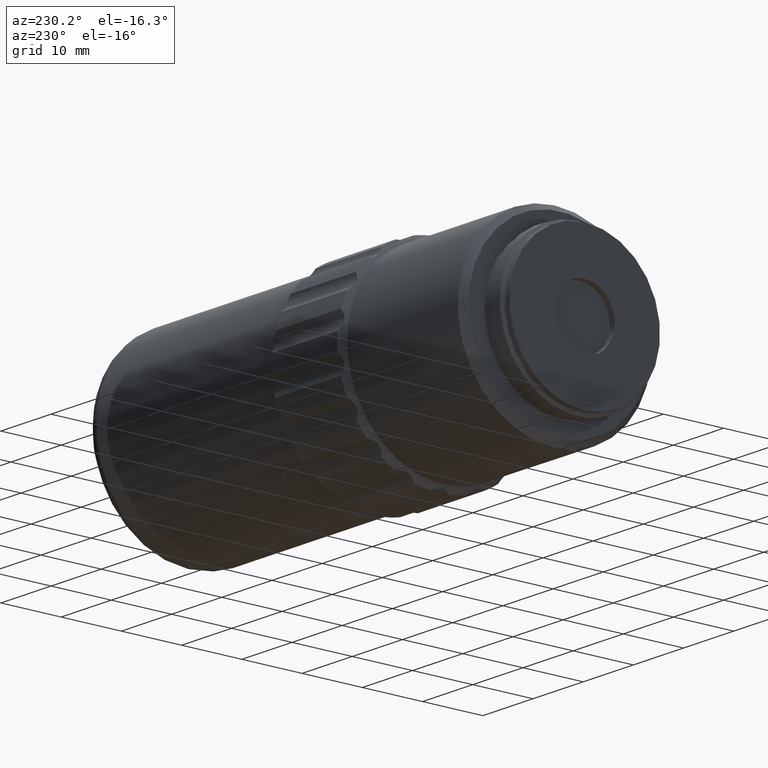
[diagram: clean part render]
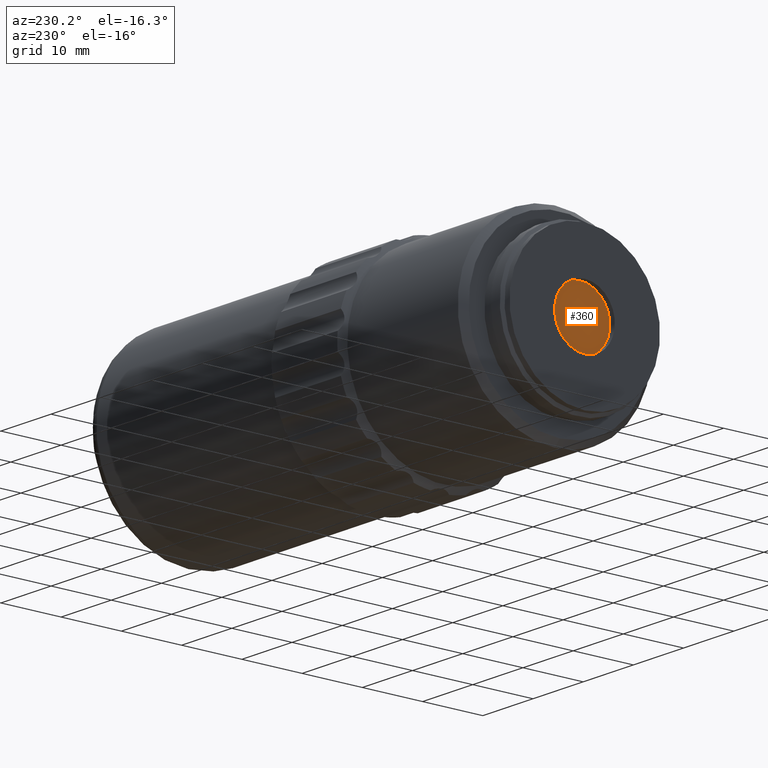
[diagram: same view with one face highlighted and labeled with its STEP entity id]
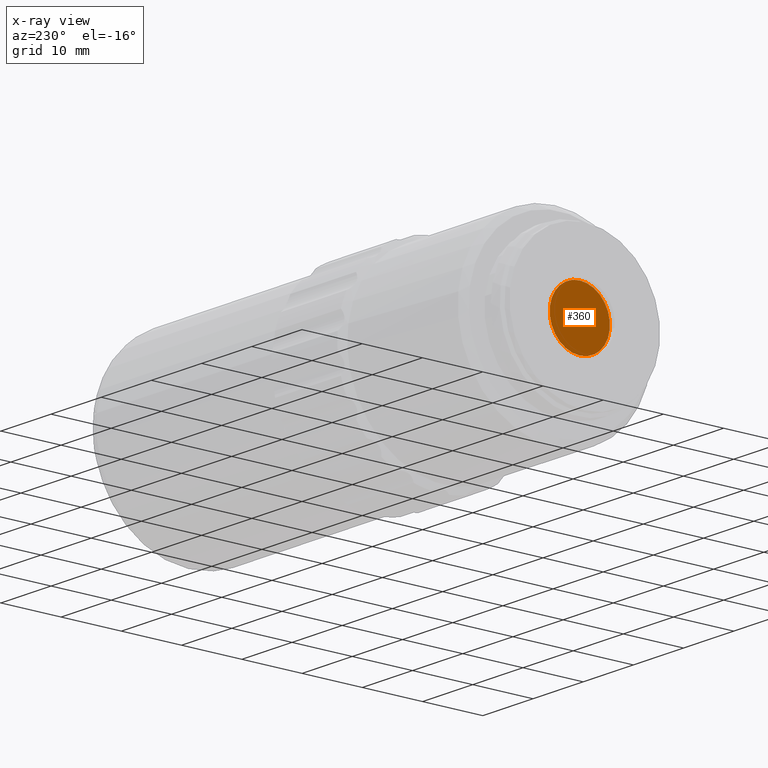
[diagram: x-ray of the same camera — body ghosted, the highlighted face saturated]
A machine part, auxiliary view. The second image highlights one B-rep face of the part: STEP entity #360.
The next image is the same camera in x-ray: the body ghosted, the highlighted face saturated — about 0% of this face is hidden behind the body in this view.
In plain terms, the highlighted planar face has unit normal (-1, 0, 0).
Its self-contained STEP definition (entity closure, byte-faithful):
#57 = VERTEX_POINT ( 'NONE', #255 ) ;
#255 = CARTESIAN_POINT ( 'NONE',  ( -8.553141965121202617, 46.02096199999999726, 5.000000000000000000 ) ) ;
#360 = ADVANCED_FACE ( 'NONE', ( #1506 ), #701, .T. ) ;
#422 = CIRCLE ( 'NONE', #966, 5.000000000000000000 ) ;
#701 = PLANE ( 'NONE',  #1614 ) ;
#744 = DIRECTION ( 'NONE',  ( 0.000000000000000000, 0.000000000000000000, 1.000000000000000000 ) ) ;
#966 = AXIS2_PLACEMENT_3D ( 'NONE', #1070, #1385, #744 ) ;
#1070 = CARTESIAN_POINT ( 'NONE',  ( -8.553141965121202617, 46.02096199999999726, 0.000000000000000000 ) ) ;
#1088 = EDGE_CURVE ( 'NONE', #57, #57, #422, .T. ) ;
#1142 = ORIENTED_EDGE ( 'NONE', *, *, #1088, .T. ) ;
#1354 = CARTESIAN_POINT ( 'NONE',  ( -8.553141965121202617, 46.02096199999999726, 0.000000000000000000 ) ) ;
#1385 = DIRECTION ( 'NONE',  ( -1.000000000000000000, 0.000000000000000000, 0.000000000000000000 ) ) ;
#1506 = FACE_OUTER_BOUND ( 'NONE', #2103, .T. ) ;
#1614 = AXIS2_PLACEMENT_3D ( 'NONE', #1354, #1661, #1819 ) ;
#1661 = DIRECTION ( 'NONE',  ( -1.000000000000000000, 0.000000000000000000, 0.000000000000000000 ) ) ;
#1819 = DIRECTION ( 'NONE',  ( 0.000000000000000000, 0.000000000000000000, 1.000000000000000000 ) ) ;
#2103 = EDGE_LOOP ( 'NONE', ( #1142 ) ) ;